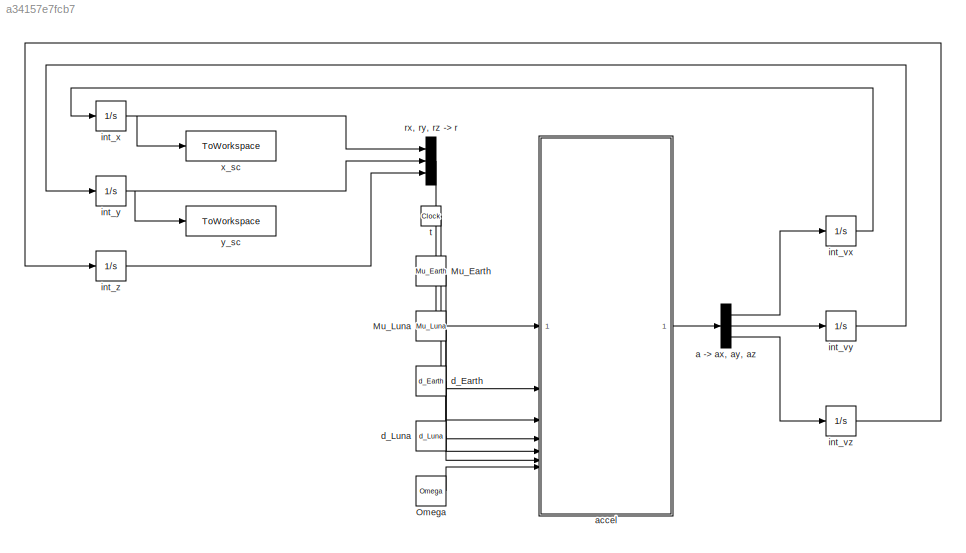
MODEL slx_a34157e7fcb7
KIND model
CONFIG AbsTol = auto
CONFIG EnableMultiTasking = off
CONFIG FixedStep = auto
CONFIG MaxStep = auto
CONFIG MinStep = auto
CONFIG RelTol = 1e-3
CONFIG SampleTimeConstraint = Unconstrained
CONFIG SolverName = ode113
CONFIG StartTime = 0.0
CONFIG StopTime = T_sys
BLOCK [Constant] Mu_Earth
  Value = Mu_Earth
BLOCK [Constant] Mu_Luna
  Value = Mu_Luna
BLOCK [Constant] Omega
  Value = Omega
BLOCK [Demux] a -> ax, ay, az
  Outputs = 3
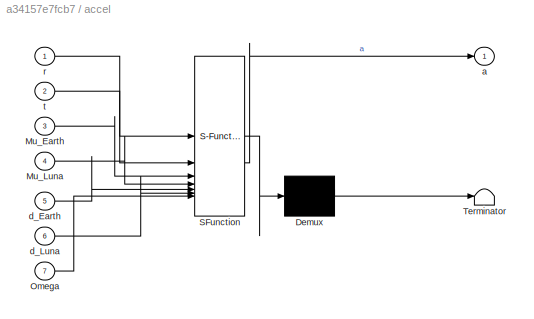
BLOCK [SubSystem] accel
  ErrorFcn = Stateflow.Translate.translate
  LibrarySourceBlock = simulink/User-Defined\nFunctions/MATLAB Function
  PermitHierarchicalResolution = ExplicitOnly
  SFBlockType = MATLAB Function
  TreatAsAtomicUnit = on
BLOCK [Demux] accel/ Demux 
  Outputs = 1
BLOCK [S-Function] accel/ SFunction 
  EnableBusSupport = on
  FunctionName = sf_sfun
  PortCounts = [7 2]
  SFcnIsStateOwnerBlock = off
  SFunctionDeploymentMode = off
  Tag = Stateflow S-Function 2
BLOCK [Terminator] accel/ Terminator 
BLOCK [Inport] accel/Mu_Earth
  Port = 3
BLOCK [Inport] accel/Mu_Luna
  Port = 4
BLOCK [Inport] accel/Omega
  Port = 7
BLOCK [Outport] accel/a
BLOCK [Inport] accel/d_Earth
  Port = 5
BLOCK [Inport] accel/d_Luna
  Port = 6
BLOCK [Inport] accel/r
BLOCK [Inport] accel/t
  Port = 2
BLOCK [Constant] d_Earth
  Value = d_Earth
BLOCK [Constant] d_Luna
  Value = d_Luna
BLOCK [Integrator] int_vx
  InitialCondition = v0x
BLOCK [Integrator] int_vy
  InitialCondition = v0y
BLOCK [Integrator] int_vz
  InitialCondition = v0z
BLOCK [Integrator] int_x
  InitialCondition = r0x
BLOCK [Integrator] int_y
  InitialCondition = r0y
BLOCK [Integrator] int_z
  InitialCondition = r0z
BLOCK [Mux] rx, ry, rz -> r
  DisplayOption = bar
  Inputs = 3
BLOCK [Clock] t
  Decimation = 1
BLOCK [ToWorkspace] x_sc
  FixptAsFi = on
  MaxDataPoints = inf
  SampleTime = -1
  Save2DSignal = 2-D array (concatenate along first dimension)
  SaveFormat = Timeseries
  VariableName = x_sc
BLOCK [ToWorkspace] y_sc
  FixptAsFi = on
  MaxDataPoints = inf
  SampleTime = -1
  Save2DSignal = 2-D array (concatenate along first dimension)
  SaveFormat = Timeseries
  VariableName = y_sc
LINE Mu_Earth:1 -> accel:3
LINE Mu_Luna:1 -> accel:4
LINE Omega:1 -> accel:7
LINE a -> ax, ay, az:1 -> int_vx:1
LINE a -> ax, ay, az:2 -> int_vy:1
LINE a -> ax, ay, az:3 -> int_vz:1
LINE accel:1 -> a -> ax, ay, az:1
LINE d_Earth:1 -> accel:5
LINE d_Luna:1 -> accel:6
LINE int_vx:1 -> int_x:1
LINE int_vy:1 -> int_y:1
LINE int_vz:1 -> int_z:1
NET int_x:1 -> rx, ry, rz -> r:1, x_sc:1
NET int_y:1 -> rx, ry, rz -> r:2, y_sc:1
LINE int_z:1 -> rx, ry, rz -> r:3
LINE rx, ry, rz -> r:1 -> accel:1
LINE t:1 -> accel:2
note: NET lines group one-source signal fan-out (src -> all destinations, sorted); 1:1 wires keep LINE
CHART accel states=1 transitions=1
  STATE_LABEL 'eML_blk_kernel()'
  STATE_LABEL 'SCRIPT:\nfunction a = accel(r, t, Mu_Earth, Mu_Luna, d_Earth, d_Luna, Omega)\n\n% Earth and Moon positions (barycenter frame)\nRE = [d_Earth * cos(Omega * t); d_Earth * sin(Omega * t); 0];\nRM = [d_Luna * cos(Omega * t);  d_Luna * sin(Omega * t); 0];\n\n% Relative vectors\nr1 = r - RE;\nr2 = r - RM;\n\n% Accelerations\na  = -Mu_Earth * r1 / (norm(r1)^3) -Mu_Luna  * r2 / (norm(r2)^3);\n'
CHART  states=0 transitions=0
